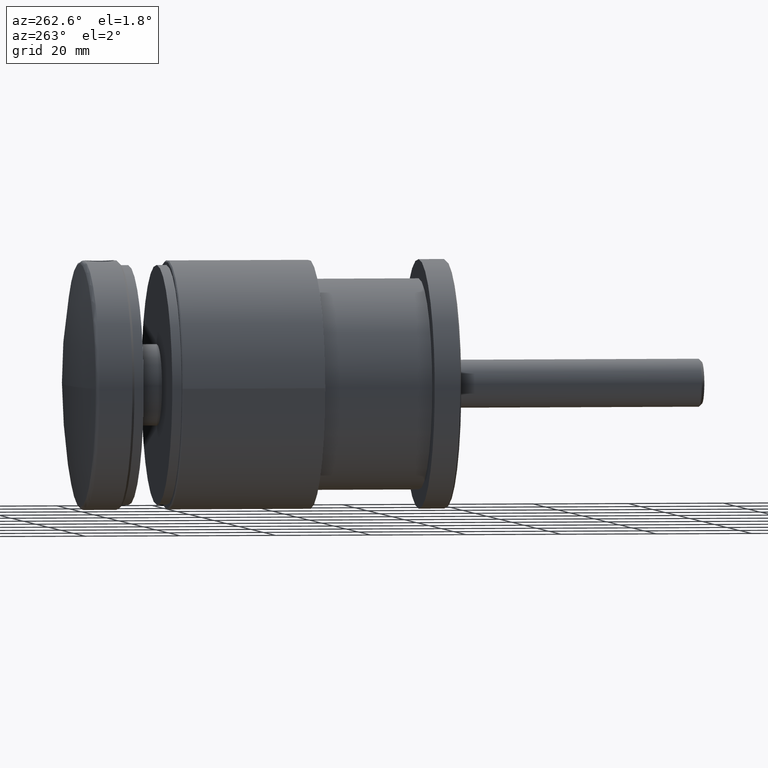
[diagram: clean part render]
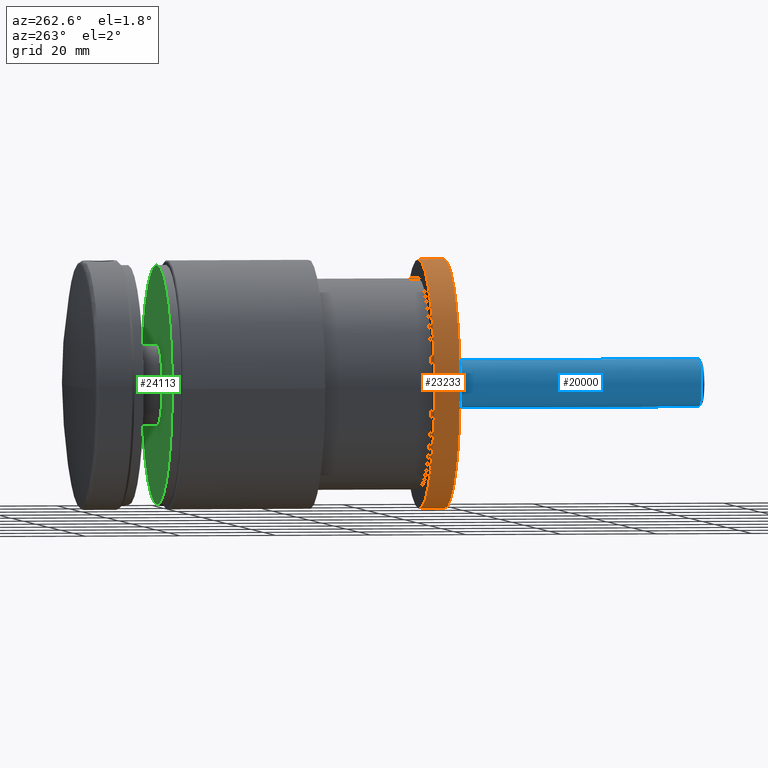
[diagram: same view with three faces highlighted in distinct colors, each labeled with its STEP entity id]
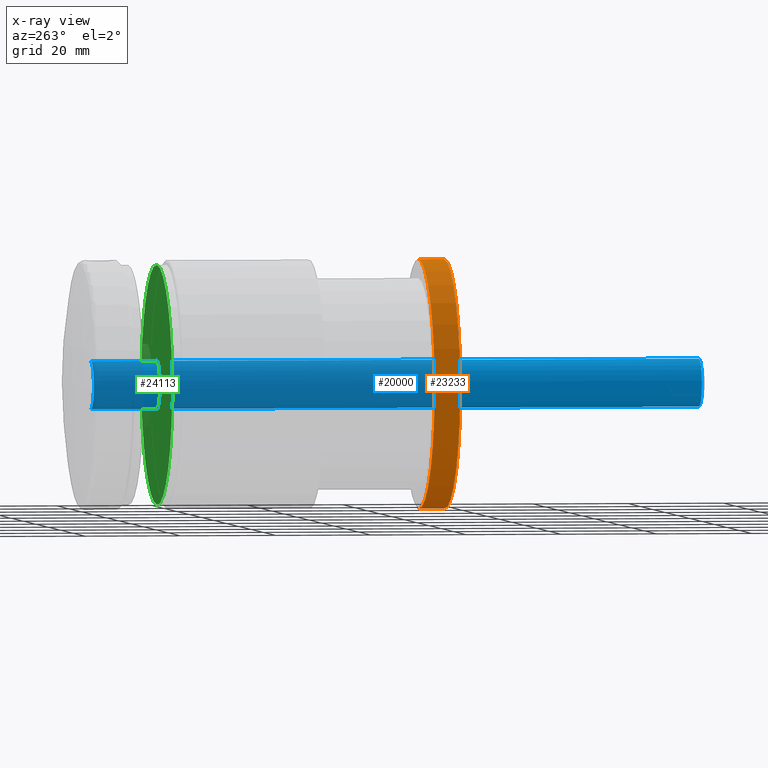
[diagram: x-ray of the same camera — body ghosted, the three highlighted faces saturated]
A machine part, auxiliary view with three faces highlighted in distinct colors.
The next image is the same camera in x-ray (body ghosted, the three faces saturated) — at least one of them is partly hidden behind the body in this view.
Their STEP definitions:

[orange] entity #23233 — the highlighted cylindrical surface (partial cylindrical patch) has radius 26 mm, axis along (0, 1, 0).
#211 = LINE ( 'NONE', #24714, #10810 ) ;
#483 = DIRECTION ( 'NONE',  ( 0.000000000000000000, 0.000000000000000000, -1.000000000000000000 ) ) ;
#1265 = DIRECTION ( 'NONE',  ( -2.630770061871633432E-48, -1.000000000000000000, 6.842277657836020854E-48 ) ) ;
#2012 = AXIS2_PLACEMENT_3D ( 'NONE', #30932, #2097, #19185 ) ;
#2097 = DIRECTION ( 'NONE',  ( -2.630770061871633432E-48, -1.000000000000000000, 6.842277657836020854E-48 ) ) ;
#2266 = CARTESIAN_POINT ( 'NONE',  ( 3.184081677783116613E-15, 29.74999999999998579, 25.99999999999998934 ) ) ;
#3988 = CARTESIAN_POINT ( 'NONE',  ( 3.184081677783145012E-15, 15.00000000000000000, 26.00000000000022027 ) ) ;
#4453 = ORIENTED_EDGE ( 'NONE', *, *, #15105, .T. ) ;
#6419 = ORIENTED_EDGE ( 'NONE', *, *, #10456, .F. ) ;
#7340 = LINE ( 'NONE', #3988, #33452 ) ;
#7765 = CIRCLE ( 'NONE', #12623, 26.00000000000022027 ) ;
#8471 = EDGE_CURVE ( 'NONE', #26828, #11245, #211, .T. ) ;
#10456 = EDGE_CURVE ( 'NONE', #11245, #30828, #27890, .T. ) ;
#10719 = ORIENTED_EDGE ( 'NONE', *, *, #26627, .T. ) ;
#10810 = VECTOR ( 'NONE', #14334, 1000.000000000000000 ) ;
#11245 = VERTEX_POINT ( 'NONE', #30831 ) ;
#12482 = DIRECTION ( 'NONE',  ( 0.000000000000000000, 0.000000000000000000, 1.000000000000000000 ) ) ;
#12623 = AXIS2_PLACEMENT_3D ( 'NONE', #28333, #15323, #12482 ) ;
#13109 = CARTESIAN_POINT ( 'NONE',  ( 0.000000000000000000, 24.39999999999999858, 8.552847072295026068E-46 ) ) ;
#13217 = DIRECTION ( 'NONE',  ( -2.630770061871633432E-48, -1.000000000000000000, 6.842277657836020854E-48 ) ) ;
#14334 = DIRECTION ( 'NONE',  ( -2.630770061871633432E-48, -1.000000000000000000, 6.842277657836020854E-48 ) ) ;
#15105 = EDGE_CURVE ( 'NONE', #26828, #27486, #7765, .T. ) ;
#15323 = DIRECTION ( 'NONE',  ( -2.630770061871633432E-48, -1.000000000000000000, 6.842277657836020854E-48 ) ) ;
#19185 = DIRECTION ( 'NONE',  ( 0.000000000000000000, 0.000000000000000000, -1.000000000000000000 ) ) ;
#21541 = ORIENTED_EDGE ( 'NONE', *, *, #8471, .F. ) ;
#22898 = CYLINDRICAL_SURFACE ( 'NONE', #2012, 26.00000000000022027 ) ;
#23233 = ADVANCED_FACE ( 'NONE', ( #30252 ), #22898, .T. ) ;
#24562 = AXIS2_PLACEMENT_3D ( 'NONE', #13109, #13217, #483 ) ;
#24714 = CARTESIAN_POINT ( 'NONE',  ( 0.000000000000000000, 15.00000000000000000, -26.00000000000022027 ) ) ;
#26627 = EDGE_CURVE ( 'NONE', #27486, #30828, #7340, .T. ) ;
#26828 = VERTEX_POINT ( 'NONE', #29045 ) ;
#27486 = VERTEX_POINT ( 'NONE', #2266 ) ;
#27890 = CIRCLE ( 'NONE', #24562, 26.00000000000022027 ) ;
#28333 = CARTESIAN_POINT ( 'NONE',  ( 0.000000000000000000, 29.74999999999998579, 0.000000000000000000 ) ) ;
#29045 = CARTESIAN_POINT ( 'NONE',  ( 3.176654849709966539E-47, 29.74999999999998579, -25.99999999999998934 ) ) ;
#29110 = EDGE_LOOP ( 'NONE', ( #4453, #10719, #6419, #21541 ) ) ;
#30252 = FACE_OUTER_BOUND ( 'NONE', #29110, .T. ) ;
#30828 = VERTEX_POINT ( 'NONE', #32159 ) ;
#30831 = CARTESIAN_POINT ( 'NONE',  ( 0.000000000000000000, 24.39999999999999858, -26.00000000000022027 ) ) ;
#30932 = CARTESIAN_POINT ( 'NONE',  ( 0.000000000000000000, 15.00000000000000000, 8.552847072295026068E-46 ) ) ;
#32159 = CARTESIAN_POINT ( 'NONE',  ( 3.184081677783116613E-15, 24.39999999999999858, 25.99999999999998934 ) ) ;
#33452 = VECTOR ( 'NONE', #1265, 1000.000000000000000 ) ;

[blue] entity #20000 — the highlighted cylindrical surface (edge-blend (fillet) strip) has radius 5 mm, axis along (0, 1, -0).
#101 = DIRECTION ( 'NONE',  ( -1.000000000000000000, 6.409494854920724422E-31, -8.553709346223529831E-32 ) ) ;
#324 = DIRECTION ( 'NONE',  ( -4.336808689942017736E-17, -1.000000000000000000, 0.000000000000000000 ) ) ;
#2083 = ORIENTED_EDGE ( 'NONE', *, *, #7307, .T. ) ;
#2613 = ORIENTED_EDGE ( 'NONE', *, *, #23177, .F. ) ;
#3809 = AXIS2_PLACEMENT_3D ( 'NONE', #15799, #15916, #324 ) ;
#4251 = VERTEX_POINT ( 'NONE', #18193 ) ;
#5455 = DIRECTION ( 'NONE',  ( 0.000000000000000000, 0.000000000000000000, 1.000000000000000000 ) ) ;
#5793 = CARTESIAN_POINT ( 'NONE',  ( 130.0000000000000000, -8.011868568650901149E-29, 1.111982215009055602E-29 ) ) ;
#7307 = EDGE_CURVE ( 'NONE', #13578, #7421, #12449, .T. ) ;
#7421 = VERTEX_POINT ( 'NONE', #7638 ) ;
#7638 = CARTESIAN_POINT ( 'NONE',  ( 129.4000000000000057, -3.880308185169002113E-29, 5.000000000000000000 ) ) ;
#7920 = EDGE_CURVE ( 'NONE', #13578, #25297, #18161, .T. ) ;
#8357 = CARTESIAN_POINT ( 'NONE',  ( 129.4000000000000057, 6.123233995736377768E-16, -5.000000000000000000 ) ) ;
#8822 = AXIS2_PLACEMENT_3D ( 'NONE', #23192, #33696, #15523 ) ;
#9036 = CIRCLE ( 'NONE', #8822, 5.000000000000000000 ) ;
#9550 = EDGE_CURVE ( 'NONE', #7421, #18417, #9948, .T. ) ;
#9948 = LINE ( 'NONE', #24054, #29122 ) ;
#12449 = CIRCLE ( 'NONE', #25409, 5.000000000000000000 ) ;
#13578 = VERTEX_POINT ( 'NONE', #8357 ) ;
#13662 = DIRECTION ( 'NONE',  ( -1.000000000000000000, 6.409494854920724422E-31, -8.553709346223529831E-32 ) ) ;
#13840 = DIRECTION ( 'NONE',  ( 0.000000000000000000, 0.000000000000000000, -1.000000000000000000 ) ) ;
#15523 = DIRECTION ( 'NONE',  ( -4.336808689942017736E-17, -1.000000000000000000, 0.000000000000000000 ) ) ;
#15799 = CARTESIAN_POINT ( 'NONE',  ( 1.679999999999987059, -4.538988261647274188E-17, 1.437023170165580074E-31 ) ) ;
#15916 = DIRECTION ( 'NONE',  ( -1.000000000000000000, 2.701778727171117012E-17, -8.553709346223534210E-32 ) ) ;
#16895 = FACE_OUTER_BOUND ( 'NONE', #29569, .T. ) ;
#18161 = LINE ( 'NONE', #24539, #21038 ) ;
#18193 = CARTESIAN_POINT ( 'NONE',  ( 1.679999999999987059, -5.000000000000000888, 6.123233995736767268E-16 ) ) ;
#18364 = CIRCLE ( 'NONE', #3809, 5.000000000000000000 ) ;
#18417 = VERTEX_POINT ( 'NONE', #20571 ) ;
#20000 = ADVANCED_FACE ( 'NONE', ( #16895 ), #25045, .T. ) ;
#20571 = CARTESIAN_POINT ( 'NONE',  ( 1.679999999999987059, -3.880146984832659233E-29, 5.000000000000000000 ) ) ;
#20835 = CARTESIAN_POINT ( 'NONE',  ( 129.4000000000000057, -8.011868568650901149E-29, 1.106849989401332529E-29 ) ) ;
#21038 = VECTOR ( 'NONE', #32645, 1000.000000000000000 ) ;
#23177 = EDGE_CURVE ( 'NONE', #25297, #4251, #9036, .T. ) ;
#23192 = CARTESIAN_POINT ( 'NONE',  ( 1.679999999999987059, -4.538988261647274188E-17, 1.437023170165580074E-31 ) ) ;
#24016 = DIRECTION ( 'NONE',  ( -1.000000000000000000, 6.409494854920724422E-31, -8.553709346223529831E-32 ) ) ;
#24054 = CARTESIAN_POINT ( 'NONE',  ( 130.0000000000000000, -8.011868568650901149E-29, 5.000000000000000000 ) ) ;
#24539 = CARTESIAN_POINT ( 'NONE',  ( 130.0000000000000000, 6.123233995735964602E-16, -5.000000000000000000 ) ) ;
#25045 = CYLINDRICAL_SURFACE ( 'NONE', #26239, 5.000000000000000000 ) ;
#25297 = VERTEX_POINT ( 'NONE', #26461 ) ;
#25409 = AXIS2_PLACEMENT_3D ( 'NONE', #20835, #101, #13840 ) ;
#26239 = AXIS2_PLACEMENT_3D ( 'NONE', #5793, #24016, #5455 ) ;
#26461 = CARTESIAN_POINT ( 'NONE',  ( 1.679999999999987059, 6.123233995736377768E-16, -5.000000000000000000 ) ) ;
#26814 = EDGE_CURVE ( 'NONE', #4251, #18417, #18364, .T. ) ;
#27548 = ORIENTED_EDGE ( 'NONE', *, *, #7920, .F. ) ;
#27730 = ORIENTED_EDGE ( 'NONE', *, *, #9550, .T. ) ;
#27946 = ORIENTED_EDGE ( 'NONE', *, *, #26814, .F. ) ;
#29122 = VECTOR ( 'NONE', #13662, 1000.000000000000000 ) ;
#29569 = EDGE_LOOP ( 'NONE', ( #27548, #2083, #27730, #27946, #2613 ) ) ;
#32645 = DIRECTION ( 'NONE',  ( -1.000000000000000000, 6.409494854920724422E-31, -8.553709346223529831E-32 ) ) ;
#33696 = DIRECTION ( 'NONE',  ( -1.000000000000000000, 2.701778727171117012E-17, -8.553709346223534210E-32 ) ) ;

[green] entity #24113 — the highlighted planar face has unit normal (0, 1, 0).
#331 = DIRECTION ( 'NONE',  ( 0.000000000000000000, 0.000000000000000000, 1.000000000000000000 ) ) ;
#921 = DIRECTION ( 'NONE',  ( 0.000000000000000000, 0.000000000000000000, 1.000000000000000000 ) ) ;
#1377 = CARTESIAN_POINT ( 'NONE',  ( 0.000000000000000000, 2.000000000000000000, 0.000000000000000000 ) ) ;
#2408 = CARTESIAN_POINT ( 'NONE',  ( 0.000000000000000000, 2.000000000000000000, -25.00000000000000000 ) ) ;
#2569 = ORIENTED_EDGE ( 'NONE', *, *, #3395, .F. ) ;
#3241 = CIRCLE ( 'NONE', #25632, 25.00000000000000000 ) ;
#3395 = EDGE_CURVE ( 'NONE', #24608, #32279, #22408, .T. ) ;
#4528 = DIRECTION ( 'NONE',  ( 0.000000000000000000, 1.000000000000000000, 0.000000000000000000 ) ) ;
#4938 = FACE_OUTER_BOUND ( 'NONE', #12620, .T. ) ;
#5337 = FACE_BOUND ( 'NONE', #18117, .T. ) ;
#5674 = CARTESIAN_POINT ( 'NONE',  ( 0.000000000000000000, 2.000000000000000000, -5.250000000000000000 ) ) ;
#6841 = EDGE_CURVE ( 'NONE', #32279, #24608, #12054, .T. ) ;
#7038 = CARTESIAN_POINT ( 'NONE',  ( 0.000000000000000000, 2.000000000000000000, 0.000000000000000000 ) ) ;
#7151 = DIRECTION ( 'NONE',  ( 0.000000000000000000, 0.000000000000000000, 1.000000000000000000 ) ) ;
#9664 = DIRECTION ( 'NONE',  ( 0.000000000000000000, 1.000000000000000000, 0.000000000000000000 ) ) ;
#10763 = AXIS2_PLACEMENT_3D ( 'NONE', #7038, #4528, #7151 ) ;
#10766 = AXIS2_PLACEMENT_3D ( 'NONE', #25275, #9664, #33049 ) ;
#12054 = CIRCLE ( 'NONE', #17120, 5.250000000000000000 ) ;
#12168 = DIRECTION ( 'NONE',  ( 0.000000000000000000, 1.000000000000000000, 0.000000000000000000 ) ) ;
#12317 = EDGE_CURVE ( 'NONE', #15397, #17179, #13958, .T. ) ;
#12620 = EDGE_LOOP ( 'NONE', ( #28534, #19100 ) ) ;
#13751 = CARTESIAN_POINT ( 'NONE',  ( 0.000000000000000000, 2.000000000000000000, 0.000000000000000000 ) ) ;
#13958 = CIRCLE ( 'NONE', #24365, 25.00000000000000000 ) ;
#14379 = ORIENTED_EDGE ( 'NONE', *, *, #6841, .F. ) ;
#15397 = VERTEX_POINT ( 'NONE', #27078 ) ;
#17120 = AXIS2_PLACEMENT_3D ( 'NONE', #30412, #12168, #19585 ) ;
#17179 = VERTEX_POINT ( 'NONE', #2408 ) ;
#18117 = EDGE_LOOP ( 'NONE', ( #14379, #2569 ) ) ;
#18461 = DIRECTION ( 'NONE',  ( 0.000000000000000000, 1.000000000000000000, 0.000000000000000000 ) ) ;
#19100 = ORIENTED_EDGE ( 'NONE', *, *, #12317, .T. ) ;
#19585 = DIRECTION ( 'NONE',  ( 0.000000000000000000, 0.000000000000000000, 1.000000000000000000 ) ) ;
#20268 = PLANE ( 'NONE',  #10766 ) ;
#22408 = CIRCLE ( 'NONE', #10763, 5.250000000000000000 ) ;
#24113 = ADVANCED_FACE ( 'NONE', ( #4938, #5337 ), #20268, .T. ) ;
#24365 = AXIS2_PLACEMENT_3D ( 'NONE', #13751, #18461, #331 ) ;
#24496 = DIRECTION ( 'NONE',  ( 0.000000000000000000, 1.000000000000000000, 0.000000000000000000 ) ) ;
#24608 = VERTEX_POINT ( 'NONE', #27737 ) ;
#25275 = CARTESIAN_POINT ( 'NONE',  ( 0.000000000000000000, 2.000000000000000000, 0.000000000000000000 ) ) ;
#25632 = AXIS2_PLACEMENT_3D ( 'NONE', #1377, #24496, #921 ) ;
#26578 = EDGE_CURVE ( 'NONE', #17179, #15397, #3241, .T. ) ;
#27078 = CARTESIAN_POINT ( 'NONE',  ( 3.061616997868383043E-15, 2.000000000000000000, 25.00000000000000000 ) ) ;
#27737 = CARTESIAN_POINT ( 'NONE',  ( 6.429395695523604153E-16, 2.000000000000000000, 5.250000000000000000 ) ) ;
#28534 = ORIENTED_EDGE ( 'NONE', *, *, #26578, .T. ) ;
#30412 = CARTESIAN_POINT ( 'NONE',  ( 0.000000000000000000, 2.000000000000000000, 0.000000000000000000 ) ) ;
#32279 = VERTEX_POINT ( 'NONE', #5674 ) ;
#33049 = DIRECTION ( 'NONE',  ( 0.000000000000000000, -0.000000000000000000, 1.000000000000000000 ) ) ;